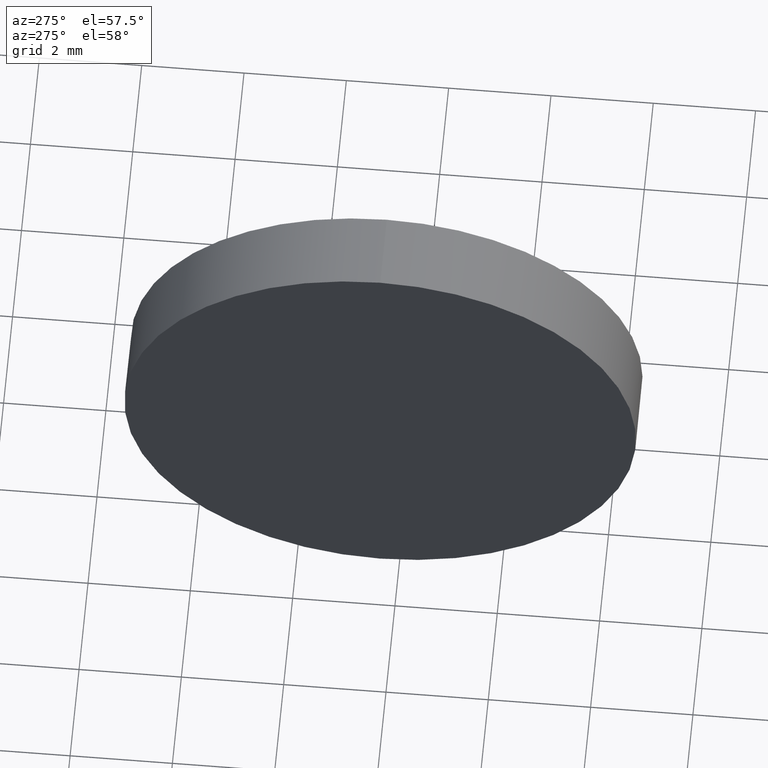
[diagram: clean part render]
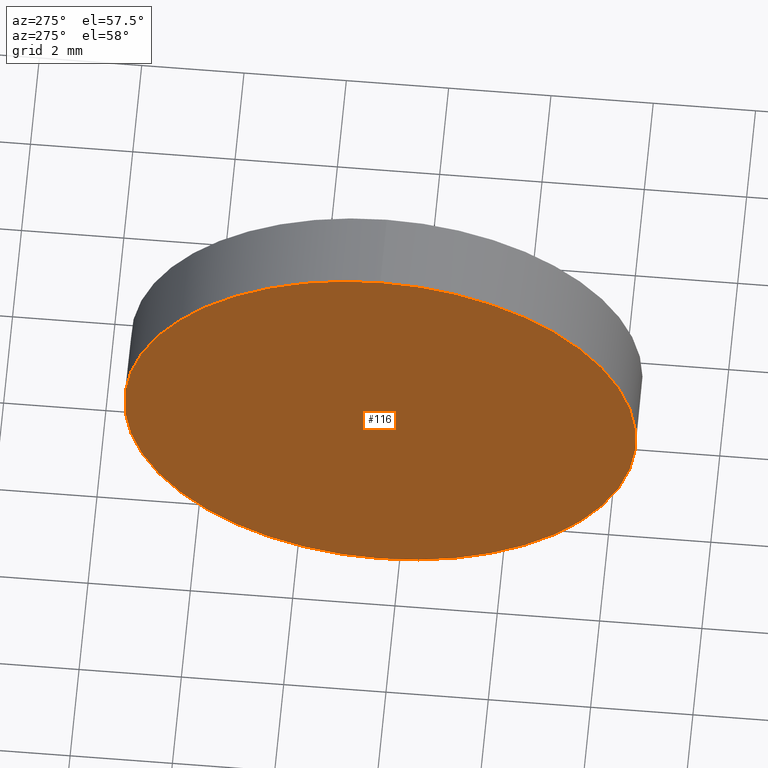
[diagram: same view with one face highlighted and labeled with its STEP entity id]
A machine part, auxiliary view. The second image highlights one B-rep face of the part: STEP entity #116.
In plain terms, the highlighted planar face has unit normal (1, 0, 0).
Its self-contained STEP definition (entity closure, byte-faithful):
#6 = EDGE_LOOP ( 'NONE', ( #61, #147 ) ) ;
#15 = CIRCLE ( 'NONE', #58, 5.000000000000004400 ) ;
#22 = DIRECTION ( 'NONE',  ( -1.000000000000000000, -0.0000000000000000000, -0.0000000000000000000 ) ) ;
#23 = CARTESIAN_POINT ( 'NONE',  ( 422.9255409494463700, 168.3692814147028700, 0.0000000000000000000 ) ) ;
#25 = DIRECTION ( 'NONE',  ( 0.0000000000000000000, 0.0000000000000000000, -1.000000000000000000 ) ) ;
#37 = CARTESIAN_POINT ( 'NONE',  ( 422.9255409494463700, 168.3692814147028700, -5.000000000000004400 ) ) ;
#43 = EDGE_CURVE ( 'NONE', #111, #176, #184, .T. ) ;
#58 = AXIS2_PLACEMENT_3D ( 'NONE', #107, #166, #139 ) ;
#61 = ORIENTED_EDGE ( 'NONE', *, *, #43, .T. ) ;
#64 = PLANE ( 'NONE',  #76 ) ;
#76 = AXIS2_PLACEMENT_3D ( 'NONE', #175, #80, #25 ) ;
#80 = DIRECTION ( 'NONE',  ( 1.000000000000000000, 0.0000000000000000000, 0.0000000000000000000 ) ) ;
#95 = EDGE_CURVE ( 'NONE', #176, #111, #15, .T. ) ;
#107 = CARTESIAN_POINT ( 'NONE',  ( 422.9255409494463700, 168.3692814147028700, 0.0000000000000000000 ) ) ;
#111 = VERTEX_POINT ( 'NONE', #157 ) ;
#116 = ADVANCED_FACE ( 'NONE', ( #140 ), #64, .F. ) ;
#122 = AXIS2_PLACEMENT_3D ( 'NONE', #23, #22, #156 ) ;
#139 = DIRECTION ( 'NONE',  ( 0.0000000000000000000, 0.0000000000000000000, 1.000000000000000000 ) ) ;
#140 = FACE_OUTER_BOUND ( 'NONE', #6, .T. ) ;
#147 = ORIENTED_EDGE ( 'NONE', *, *, #95, .T. ) ;
#156 = DIRECTION ( 'NONE',  ( 0.0000000000000000000, 0.0000000000000000000, 1.000000000000000000 ) ) ;
#157 = CARTESIAN_POINT ( 'NONE',  ( 422.9255409494463700, 168.3692814147028700, 5.000000000000004400 ) ) ;
#166 = DIRECTION ( 'NONE',  ( -1.000000000000000000, -0.0000000000000000000, -0.0000000000000000000 ) ) ;
#175 = CARTESIAN_POINT ( 'NONE',  ( 422.9255409494463700, 168.3692814147028700, 0.0000000000000000000 ) ) ;
#176 = VERTEX_POINT ( 'NONE', #37 ) ;
#184 = CIRCLE ( 'NONE', #122, 5.000000000000004400 ) ;